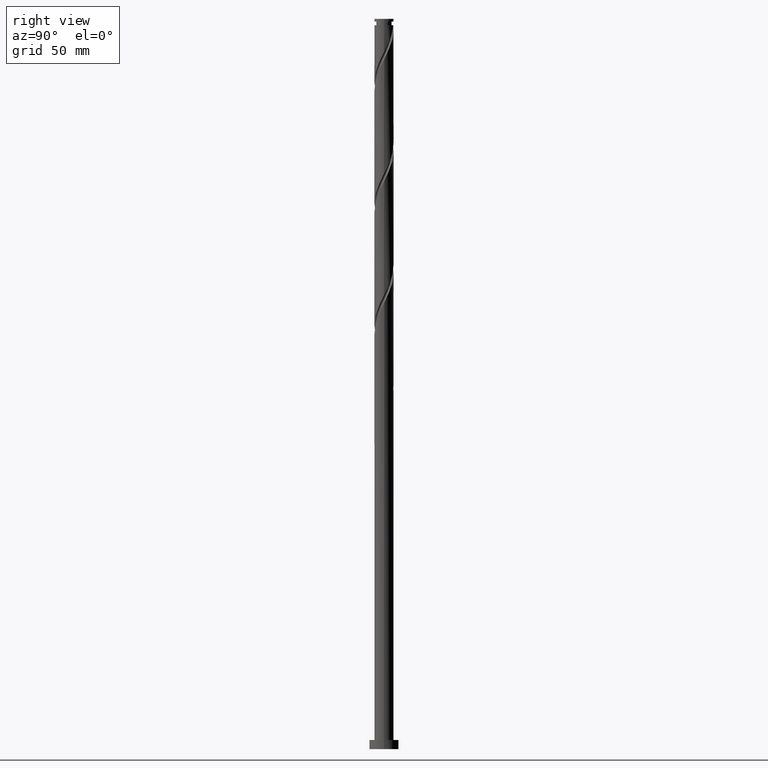
[diagram: clean part render]
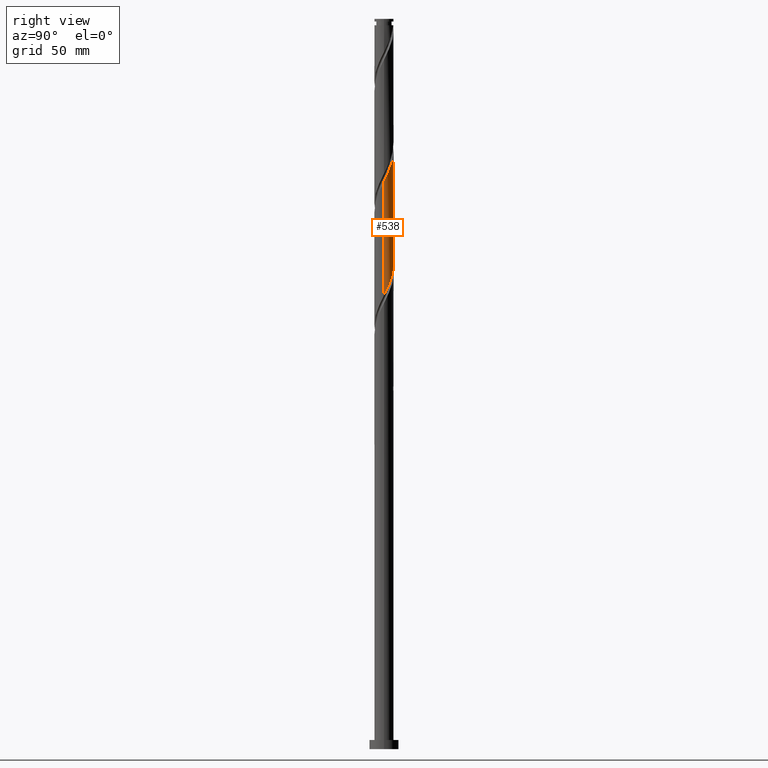
[diagram: same view with one face highlighted and labeled with its STEP entity id]
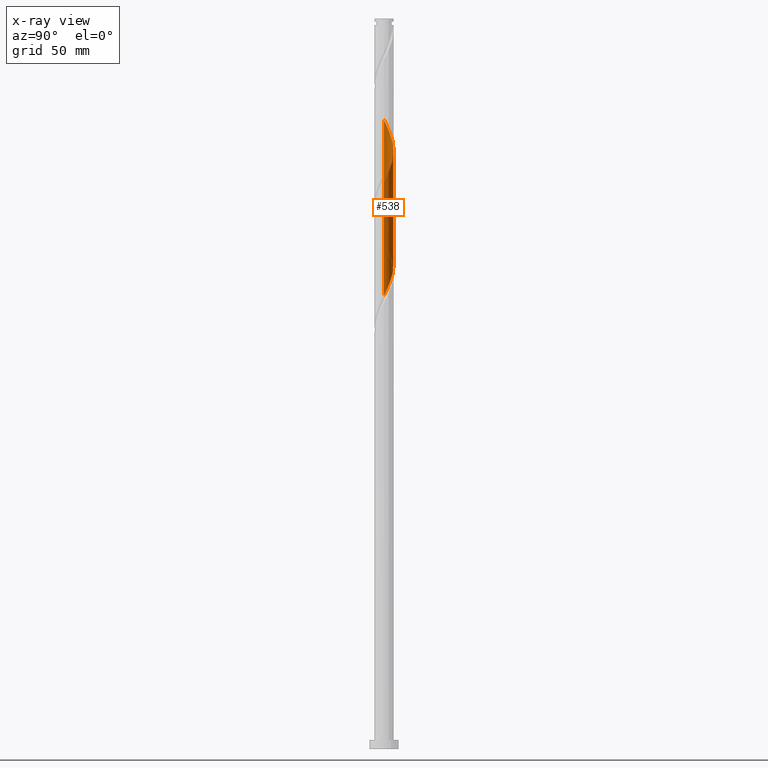
[diagram: x-ray of the same camera — body ghosted, the highlighted face saturated]
A machine part, right view. The second image highlights one B-rep face of the part: STEP entity #538.
The next image is the same camera in x-ray: the body ghosted, the highlighted face saturated — about 0% of this face is hidden behind the body in this view.
In plain terms, the highlighted cylindrical surface (edge-blend (fillet) strip) has radius 5.25 mm, axis along (-0, -0, -1).
Its self-contained STEP definition (entity closure, byte-faithful):
#24 = AXIS2_PLACEMENT_3D ( 'NONE', #601, #1217, #1412 ) ;
#65 = CARTESIAN_POINT ( 'NONE',  ( 5.153354738608594054, 1.144515236584384255, 250.9268371093419319 ) ) ;
#74 = EDGE_CURVE ( 'NONE', #1000, #1008, #282, .T. ) ;
#92 = CARTESIAN_POINT ( 'NONE',  ( -5.250000000000000000, 0.000000000000000000, 400.0000000000000000 ) ) ;
#108 = CARTESIAN_POINT ( 'NONE',  ( 5.173340098354294092, 1.050491511376013376, 313.1490593315641604 ) ) ;
#124 = CARTESIAN_POINT ( 'NONE',  ( -4.298807956775186234, 3.063858733603723739, 275.3712815537864458 ) ) ;
#134 = CARTESIAN_POINT ( 'NONE',  ( -5.226019884829710804, 0.5012146878977687958, 280.9268371093420456 ) ) ;
#148 = CARTESIAN_POINT ( 'NONE',  ( -3.496422384488686586, 3.954998191903501326, 335.3712815537862753 ) ) ;
#168 = CARTESIAN_POINT ( 'NONE',  ( -0.5039755185200452958, 5.254806263359856011, 328.7046148871197033 ) ) ;
#193 = CARTESIAN_POINT ( 'NONE',  ( 2.597726805279742202, 4.595519082089047913, 259.8157259982308460 ) ) ;
#207 =( BOUNDED_CURVE ( )  B_SPLINE_CURVE ( 2, ( #1056, #905, #134, #774, #349, #456, #753, #124, #1698, #446, #1998, #1400, #1246, #762, #744, #468, #1129, #2008, #963, #1859, #1593, #193, #1289, #1909, #518, #1369, #1989, #1214, #1935, #65, #225, #1781, #390 ),
 .UNSPECIFIED., .F., .T. ) 
 B_SPLINE_CURVE_WITH_KNOTS ( ( 3, 2, 2, 2, 2, 2, 2, 2, 2, 2, 2, 2, 2, 2, 2, 2, 3 ),
 ( 0.6795286012773112949, 0.6833333333333333481, 0.6916666666666666519, 0.6999999999999999556, 0.7083333333333333703, 0.7166666666666666741, 0.7249999999999999778, 0.7333333333333332815, 0.7416666666666666963, 0.7500000000000000000, 0.7583333333333333037, 0.7666666666666667185, 0.7750000000000000222, 0.7833333333333333259, 0.7916666666666666297, 0.8000000000000000444, 0.8045286012773116280 ),
 .UNSPECIFIED. ) 
 CURVE ( )  GEOMETRIC_REPRESENTATION_ITEM ( )  RATIONAL_B_SPLINE_CURVE ( ( 0.9066196499552243715, 0.9068171577856370957, 0.9090909090909361501, 0.9041108139711843128, 0.9090909090909361501, 0.9041108139711843128, 0.9090909090909361501, 0.9041108139711843128, 0.9090909090909361501, 0.9041108139711843128, 0.9090909090909361501, 0.9041108139711843128, 0.9090909090909361501, 0.9041108139711843128, 0.9090909090909361501, 0.9041108139711843128, 0.9090909090909361501, 0.9041108139711843128, 0.9090909090909361501, 0.9041108139711843128, 0.9090909090909361501, 0.9041108139711843128, 0.9090909090909361501, 0.9041108139711843128, 0.9090909090909361501, 0.9041108139711843128, 0.9090909090909361501, 0.9041108139711843128, 0.9090909090909361501, 0.9041108139711843128, 0.9090909090909361501, 0.9063845652764831451, 0.9066196499552244825 ) ) 
 REPRESENTATION_ITEM ( '' )  );
#225 = CARTESIAN_POINT ( 'NONE',  ( 5.216027204956860786, 0.5962886860824307966, 249.8157259982308176 ) ) ;
#226 = CARTESIAN_POINT ( 'NONE',  ( 5.250000000000000888, 4.753596103771549200E-15, 248.6078359084190197 ) ) ;
#233 = ORIENTED_EDGE ( 'NONE', *, *, #1766, .F. ) ;
#282 =( BOUNDED_CURVE ( )  B_SPLINE_CURVE ( 2, ( #1332, #1175, #1028, #108, #1351, #1973, #1083, #798, #1103, #1263, #461, #505, #1579, #1732, #631, #950, #1557, #168, #941, #1405, #1238, #1568, #1093, #148, #1113, #1874, #1742, #778, #788, #621, #1864, #1382, #302 ),
 .UNSPECIFIED., .F., .T. ) 
 B_SPLINE_CURVE_WITH_KNOTS ( ( 3, 2, 2, 2, 2, 2, 2, 2, 2, 2, 2, 2, 2, 2, 2, 2, 3 ),
 ( 0.4295286012773118500, 0.4333333333333333481, 0.4416666666666666519, 0.4499999999999999556, 0.4583333333333333703, 0.4666666666666666741, 0.4749999999999999778, 0.4833333333333332815, 0.4916666666666666963, 0.5000000000000000000, 0.5083333333333333037, 0.5166666666666666075, 0.5250000000000000222, 0.5333333333333333259, 0.5416666666666667407, 0.5500000000000000444, 0.5545286012773117390 ),
 .UNSPECIFIED. ) 
 CURVE ( )  GEOMETRIC_REPRESENTATION_ITEM ( )  RATIONAL_B_SPLINE_CURVE ( ( 0.9066196499552294785, 0.9068171577856424248, 0.9090909090909411461, 0.9041108139711893088, 0.9090909090909411461, 0.9041108139711893088, 0.9090909090909411461, 0.9041108139711893088, 0.9090909090909411461, 0.9041108139711893088, 0.9090909090909411461, 0.9041108139711893088, 0.9090909090909411461, 0.9041108139711893088, 0.9090909090909411461, 0.9041108139711893088, 0.9090909090909411461, 0.9041108139711893088, 0.9090909090909411461, 0.9041108139711893088, 0.9090909090909411461, 0.9041108139711893088, 0.9090909090909411461, 0.9041108139711893088, 0.9090909090909411461, 0.9041108139711893088, 0.9090909090909411461, 0.9041108139711893088, 0.9090909090909411461, 0.9041108139711893088, 0.9090909090909411461, 0.9063845652764881411, 0.9066196499552294785 ) ) 
 REPRESENTATION_ITEM ( '' )  );
#302 = CARTESIAN_POINT ( 'NONE',  ( -5.250000000000006217, 5.710294690694092568E-15, 344.3569494213759299 ) ) ;
#349 = CARTESIAN_POINT ( 'NONE',  ( -5.007610418509818473, 1.576812574921923282, 278.7046148871197602 ) ) ;
#388 = VECTOR ( 'NONE', #1224, 1000.000000000000000 ) ;
#390 = CARTESIAN_POINT ( 'NONE',  ( 5.250000000000001776, 4.753596103771549200E-15, 248.6078359084190481 ) ) ;
#446 = CARTESIAN_POINT ( 'NONE',  ( -3.567856639204733948, 3.890678500055764655, 273.1490593315642172 ) ) ;
#452 = CARTESIAN_POINT ( 'NONE',  ( -5.249999999999999112, -6.936064755188675091E-15, 281.9411692417523341 ) ) ;
#456 = CARTESIAN_POINT ( 'NONE',  ( -4.841880738665349959, 2.103133638467831190, 277.5935037760086743 ) ) ;
#461 = CARTESIAN_POINT ( 'NONE',  ( 3.124414752615067847, 4.219067723282169169, 320.9268371093418750 ) ) ;
#468 = CARTESIAN_POINT ( 'NONE',  ( -0.5995732108659357351, 5.244758541012672026, 266.4823926648975316 ) ) ;
#505 = CARTESIAN_POINT ( 'NONE',  ( 2.680972866025397305, 4.547456946508573239, 322.0379482204530746 ) ) ;
#518 = CARTESIAN_POINT ( 'NONE',  ( 3.869364956144049295, 3.548311547224167750, 256.4823926648974179 ) ) ;
#538 = ADVANCED_FACE ( 'NONE', ( #1828 ), #1047, .T. ) ;
#558 = CARTESIAN_POINT ( 'NONE',  ( -5.250000000000006217, 5.710294690694092568E-15, 344.3569494213759867 ) ) ;
#601 = CARTESIAN_POINT ( 'NONE',  ( 0.000000000000000000, 0.000000000000000000, 400.0000000000000000 ) ) ;
#621 = CARTESIAN_POINT ( 'NONE',  ( -5.153354738608599384, 1.144515236584389584, 342.0379482204530177 ) ) ;
#631 = CARTESIAN_POINT ( 'NONE',  ( 1.138245462365778282, 5.125124122146095473, 325.3712815537863889 ) ) ;
#710 = CARTESIAN_POINT ( 'NONE',  ( 5.250000000000007105, 3.647413362642301460E-15, 311.0236160880426723 ) ) ;
#744 = CARTESIAN_POINT ( 'NONE',  ( -1.138245462365771621, 5.125124122146089256, 267.5935037760086175 ) ) ;
#753 = CARTESIAN_POINT ( 'NONE',  ( -4.570344347720266320, 2.583496186035776354, 276.4823926648975316 ) ) ;
#762 = CARTESIAN_POINT ( 'NONE',  ( -1.676917713865607951, 5.005489703279510927, 268.7046148871197602 ) ) ;
#774 = CARTESIAN_POINT ( 'NONE',  ( -5.173340098354292316, 1.050491511376014042, 279.8157259982309029 ) ) ;
#778 = CARTESIAN_POINT ( 'NONE',  ( -4.802783475295242077, 2.190947529756130052, 339.8157259982309029 ) ) ;
#788 = CARTESIAN_POINT ( 'NONE',  ( -4.978069106951918954, 1.667731383170259596, 340.9268371093419887 ) ) ;
#798 = CARTESIAN_POINT ( 'NONE',  ( 4.298807956775192451, 3.063858733603723739, 317.5935037760086175 ) ) ;
#803 = DIRECTION ( 'NONE',  ( -0.000000000000000000, -0.000000000000000000, -1.000000000000000000 ) ) ;
#859 = ORIENTED_EDGE ( 'NONE', *, *, #1254, .F. ) ;
#861 = LINE ( 'NONE', #92, #1722 ) ;
#905 = CARTESIAN_POINT ( 'NONE',  ( -5.250000000000001776, 0.2511809962554255593, 281.4326207161883531 ) ) ;
#941 = CARTESIAN_POINT ( 'NONE',  ( -1.044736808961954422, 5.145000000000004903, 329.8157259982309029 ) ) ;
#950 = CARTESIAN_POINT ( 'NONE',  ( 0.5995732108659387327, 5.244758541012678243, 326.4823926648974748 ) ) ;
#963 = CARTESIAN_POINT ( 'NONE',  ( 1.044736808961956420, 5.145000000000000462, 263.1490593315641036 ) ) ;
#1000 = VERTEX_POINT ( 'NONE', #710 ) ;
#1008 = VERTEX_POINT ( 'NONE', #558 ) ;
#1028 = CARTESIAN_POINT ( 'NONE',  ( 5.226019884829717022, 0.5012146878977641329, 312.0379482204530746 ) ) ;
#1047 = CYLINDRICAL_SURFACE ( 'NONE', #24, 5.250000000000000000 ) ;
#1056 = CARTESIAN_POINT ( 'NONE',  ( -5.249999999999998224, -6.936064755188675091E-15, 281.9411692417523341 ) ) ;
#1083 = CARTESIAN_POINT ( 'NONE',  ( 4.570344347720274314, 2.583496186035778130, 316.4823926648975316 ) ) ;
#1093 = CARTESIAN_POINT ( 'NONE',  ( -3.047074594884214171, 4.275258636996276174, 334.2601704426751894 ) ) ;
#1096 = EDGE_LOOP ( 'NONE', ( #1726, #1198, #859, #233 ) ) ;
#1103 = CARTESIAN_POINT ( 'NONE',  ( 3.933332297989966087, 3.477268616829743308, 318.7046148871196465 ) ) ;
#1113 = CARTESIAN_POINT ( 'NONE',  ( -3.869364956144053291, 3.548311547224172191, 336.4823926648974748 ) ) ;
#1129 = CARTESIAN_POINT ( 'NONE',  ( -0.04779884617294290206, 5.249782402186260022, 265.3712815537863889 ) ) ;
#1175 = CARTESIAN_POINT ( 'NONE',  ( 5.250000000000004441, 0.2511809962554575337, 311.5321646136067102 ) ) ;
#1198 = ORIENTED_EDGE ( 'NONE', *, *, #1215, .T. ) ;
#1214 = CARTESIAN_POINT ( 'NONE',  ( 4.802783475295235860, 2.190947529756125611, 253.1490593315642172 ) ) ;
#1215 = EDGE_CURVE ( 'NONE', #1000, #1771, #1388, .T. ) ;
#1217 = DIRECTION ( 'NONE',  ( -0.000000000000000000, -0.000000000000000000, -1.000000000000000000 ) ) ;
#1224 = DIRECTION ( 'NONE',  ( -0.000000000000000000, -0.000000000000000000, -1.000000000000000000 ) ) ;
#1238 = CARTESIAN_POINT ( 'NONE',  ( -2.091612452341801820, 4.815356409364604851, 332.0379482204530746 ) ) ;
#1246 = CARTESIAN_POINT ( 'NONE',  ( -2.178945289945499297, 4.776473324894038974, 269.8157259982307892 ) ) ;
#1254 = EDGE_CURVE ( 'NONE', #1942, #1771, #207, .T. ) ;
#1263 = CARTESIAN_POINT ( 'NONE',  ( 3.567856639204737945, 3.890678500055766431, 319.8157259982309029 ) ) ;
#1289 = CARTESIAN_POINT ( 'NONE',  ( 3.047074594884214616, 4.275258636996269068, 258.7046148871197033 ) ) ;
#1332 = CARTESIAN_POINT ( 'NONE',  ( 5.250000000000007105, 3.647413362642301460E-15, 311.0236160880426723 ) ) ;
#1351 = CARTESIAN_POINT ( 'NONE',  ( 5.007610418509827355, 1.576812574921920840, 314.2601704426754168 ) ) ;
#1369 = CARTESIAN_POINT ( 'NONE',  ( 4.242307527799416889, 3.141624902544836395, 255.3712815537864742 ) ) ;
#1382 = CARTESIAN_POINT ( 'NONE',  ( -5.250000000000008882, 0.2991121215937540545, 343.7513581119914079 ) ) ;
#1388 = LINE ( 'NONE', #1709, #388 ) ;
#1400 = CARTESIAN_POINT ( 'NONE',  ( -2.680972866025389756, 4.547456946508571463, 270.9268371093419319 ) ) ;
#1405 = CARTESIAN_POINT ( 'NONE',  ( -1.585498099403861438, 5.035193736640155571, 330.9268371093419319 ) ) ;
#1412 = DIRECTION ( 'NONE',  ( -1.000000000000000000, 0.000000000000000000, 0.000000000000000000 ) ) ;
#1557 = CARTESIAN_POINT ( 'NONE',  ( 0.04779884617294657967, 5.249782402186265351, 327.5935037760086175 ) ) ;
#1568 = CARTESIAN_POINT ( 'NONE',  ( -2.597726805279742646, 4.595519082089053242, 333.1490593315641036 ) ) ;
#1579 = CARTESIAN_POINT ( 'NONE',  ( 2.178945289945503738, 4.776473324894045192, 323.1490593315641036 ) ) ;
#1593 = CARTESIAN_POINT ( 'NONE',  ( 2.091612452341802708, 4.815356409364597745, 260.9268371093419319 ) ) ;
#1698 = CARTESIAN_POINT ( 'NONE',  ( -3.933332297989958537, 3.477268616829742420, 274.2601704426751894 ) ) ;
#1709 = CARTESIAN_POINT ( 'NONE',  ( 5.250000000000000000, 6.429395695523603167E-16, 400.0000000000000000 ) ) ;
#1722 = VECTOR ( 'NONE', #803, 1000.000000000000000 ) ;
#1726 = ORIENTED_EDGE ( 'NONE', *, *, #74, .F. ) ;
#1732 = CARTESIAN_POINT ( 'NONE',  ( 1.676917713865613502, 5.005489703279513591, 324.2601704426753599 ) ) ;
#1742 = CARTESIAN_POINT ( 'NONE',  ( -4.522545501547328151, 2.666286216150487665, 338.7046148871195896 ) ) ;
#1766 = EDGE_CURVE ( 'NONE', #1008, #1942, #861, .T. ) ;
#1771 = VERTEX_POINT ( 'NONE', #226 ) ;
#1781 = CARTESIAN_POINT ( 'NONE',  ( 5.250000000000001776, 0.2991121215937570521, 249.2134272178035701 ) ) ;
#1828 = FACE_OUTER_BOUND ( 'NONE', #1096, .T. ) ;
#1859 = CARTESIAN_POINT ( 'NONE',  ( 1.585498099403864769, 5.035193736640148465, 262.0379482204531314 ) ) ;
#1864 = CARTESIAN_POINT ( 'NONE',  ( -5.216027204956867891, 0.5962886860824332391, 343.1490593315641604 ) ) ;
#1874 = CARTESIAN_POINT ( 'NONE',  ( -4.242307527799417777, 3.141624902544845277, 337.5935037760086175 ) ) ;
#1909 = CARTESIAN_POINT ( 'NONE',  ( 3.496422384488685697, 3.954998191903494220, 257.5935037760086175 ) ) ;
#1935 = CARTESIAN_POINT ( 'NONE',  ( 4.978069106951915401, 1.667731383170252712, 252.0379482204531030 ) ) ;
#1942 = VERTEX_POINT ( 'NONE', #452 ) ;
#1973 = CARTESIAN_POINT ( 'NONE',  ( 4.841880738665357065, 2.103133638467828970, 315.3712815537862753 ) ) ;
#1989 = CARTESIAN_POINT ( 'NONE',  ( 4.522545501547324598, 2.666286216150479671, 254.2601704426752462 ) ) ;
#1998 = CARTESIAN_POINT ( 'NONE',  ( -3.124414752615059854, 4.219067723282166504, 272.0379482204529609 ) ) ;
#2008 = CARTESIAN_POINT ( 'NONE',  ( 0.5039755185200498477, 5.254806263359850682, 264.2601704426753031 ) ) ;